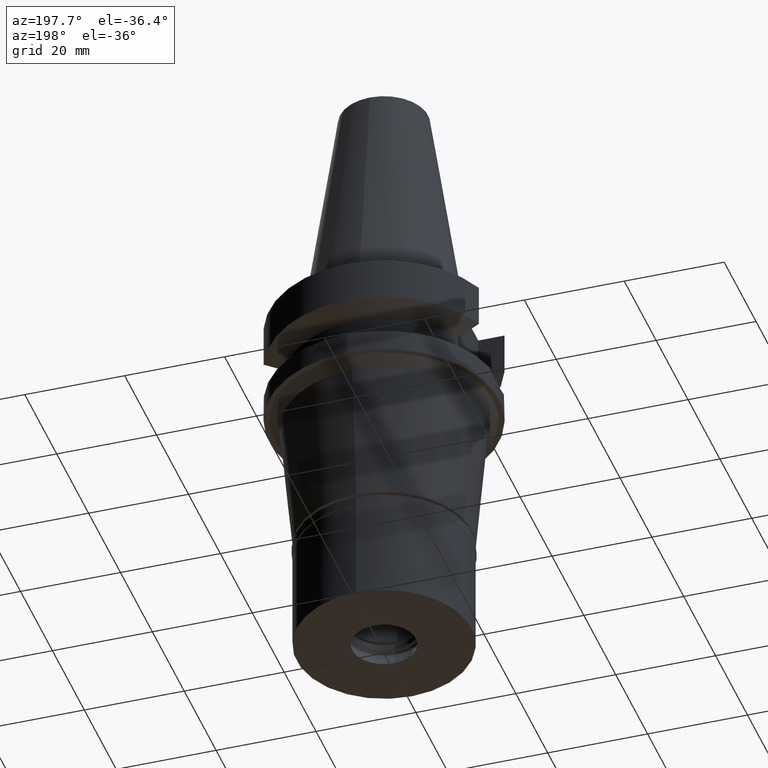
[diagram: clean part render]
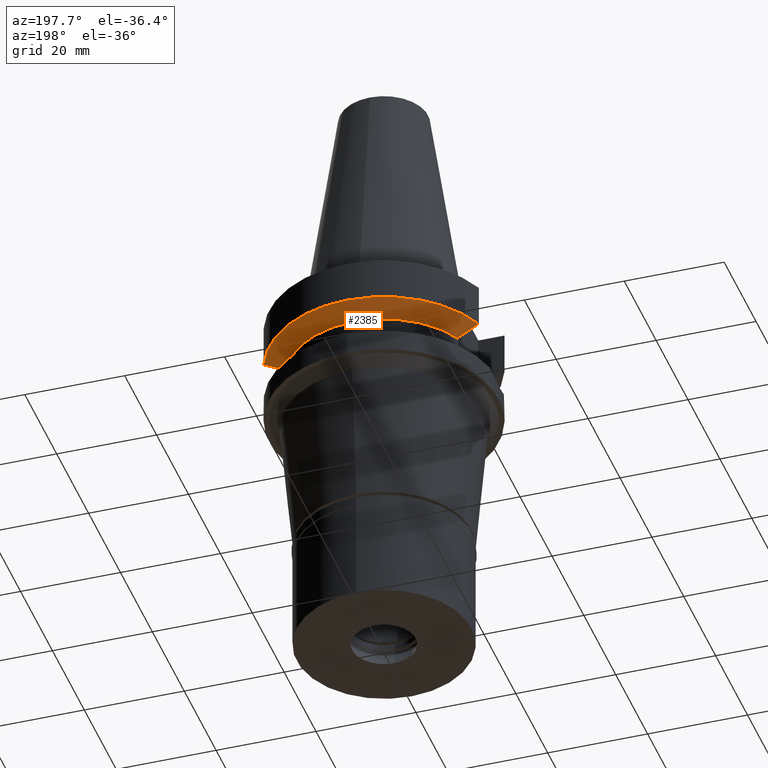
[diagram: same view with one face highlighted and labeled with its STEP entity id]
A machine part, auxiliary view. The second image highlights one B-rep face of the part: STEP entity #2385.
In plain terms, the highlighted conical surface has half-angle 60 deg.
Its self-contained STEP definition (entity closure, byte-faithful):
#20 = EDGE_CURVE ( 'NONE', #223, #2959, #2449, .T. ) ;
#79 = ORIENTED_EDGE ( 'NONE', *, *, #2345, .T. ) ;
#223 = VERTEX_POINT ( 'NONE', #721 ) ;
#237 = AXIS2_PLACEMENT_3D ( 'NONE', #1935, #310, #1249 ) ;
#290 = CARTESIAN_POINT ( 'NONE',  ( -20.64102060711186226, 8.050004185766349352, -10.05624058751051741 ) ) ;
#310 = DIRECTION ( 'NONE',  ( 0.0000000000000000000, 0.0000000000000000000, 1.000000000000000000 ) ) ;
#554 = B_SPLINE_CURVE_WITH_KNOTS ( 'NONE', 3,
 ( #584, #2036, #861, #1589 ),
 .UNSPECIFIED., .F., .F.,
 ( 4, 4 ),
 ( 0.0000000000000000000, 1.000000000000000000 ),
 .UNSPECIFIED. ) ;
#584 = CARTESIAN_POINT ( 'NONE',  ( -18.96736186712000105, 8.050001278060001653, -10.94999977536999936 ) ) ;
#664 = CARTESIAN_POINT ( 'NONE',  ( 20.64098922513857204, 8.049999155450739963, -10.05625859774404063 ) ) ;
#669 = EDGE_CURVE ( 'NONE', #769, #2177, #1971, .T. ) ;
#721 = CARTESIAN_POINT ( 'NONE',  ( 21.54524325238000060, 8.049999577379001181, -9.567211146543000311 ) ) ;
#769 = VERTEX_POINT ( 'NONE', #1190 ) ;
#832 = DIRECTION ( 'NONE',  ( 0.0000000000000000000, 0.0000000000000000000, -1.000000000000000000 ) ) ;
#853 = DIRECTION ( 'NONE',  ( -0.9071218755693948310, 0.4208680349746975469, 0.0000000000000000000 ) ) ;
#854 = ORIENTED_EDGE ( 'NONE', *, *, #20, .F. ) ;
#861 = CARTESIAN_POINT ( 'NONE',  ( -17.72682657658894456, 8.027186145136614215, -11.61172868551800086 ) ) ;
#965 = VERTEX_POINT ( 'NONE', #1318 ) ;
#1080 = CARTESIAN_POINT ( 'NONE',  ( 18.96738966530000070, 8.049994318182998043, -10.95000099923000114 ) ) ;
#1132 = EDGE_CURVE ( 'NONE', #1906, #2959, #2780, .T. ) ;
#1190 = CARTESIAN_POINT ( 'NONE',  ( -17.23531135277999837, 7.996501749842999551, -11.87660739337000138 ) ) ;
#1249 = DIRECTION ( 'NONE',  ( 0.0000000000000000000, 1.000000000000000000, 0.0000000000000000000 ) ) ;
#1255 = CARTESIAN_POINT ( 'NONE',  ( -18.96736186712000105, 8.050001278060001653, -10.94999977536999936 ) ) ;
#1289 = AXIS2_PLACEMENT_3D ( 'NONE', #1549, #832, #853 ) ;
#1308 = CARTESIAN_POINT ( 'NONE',  ( 19.78174442298433533, 8.049991903556987793, -10.51718567366341262 ) ) ;
#1318 = CARTESIAN_POINT ( 'NONE',  ( 18.96738966530000070, 8.049994318182998043, -10.95000099923000114 ) ) ;
#1355 = CARTESIAN_POINT ( 'NONE',  ( 21.54524325238000060, 8.049999577379001181, -9.567211146543000311 ) ) ;
#1402 = EDGE_CURVE ( 'NONE', #2177, #965, #1804, .T. ) ;
#1443 = EDGE_LOOP ( 'NONE', ( #854, #79, #1791, #2105, #1447, #2997 ) ) ;
#1447 = ORIENTED_EDGE ( 'NONE', *, *, #1698, .F. ) ;
#1451 = CARTESIAN_POINT ( 'NONE',  ( -21.54524231189000005, 8.050002094537999753, -9.567194606710000215 ) ) ;
#1464 = CARTESIAN_POINT ( 'NONE',  ( 0.0000000000000000000, 0.0000000000000000000, -10.72190890808999875 ) ) ;
#1549 = CARTESIAN_POINT ( 'NONE',  ( 0.0000000000000000000, 0.0000000000000000000, -11.87660944646999894 ) ) ;
#1589 = CARTESIAN_POINT ( 'NONE',  ( -17.23531135277999837, 7.996501749842999551, -11.87660739337000138 ) ) ;
#1687 = CARTESIAN_POINT ( 'NONE',  ( -19.78176599987389750, 8.050001300084160150, -10.51717224073629353 ) ) ;
#1698 = EDGE_CURVE ( 'NONE', #1906, #769, #554, .T. ) ;
#1791 = ORIENTED_EDGE ( 'NONE', *, *, #1402, .F. ) ;
#1804 = B_SPLINE_CURVE_WITH_KNOTS ( 'NONE', 3,
 ( #2312, #2954, #2502, #1080 ),
 .UNSPECIFIED., .F., .F.,
 ( 4, 4 ),
 ( 0.0000000000000000000, 1.000000000000000000 ),
 .UNSPECIFIED. ) ;
#1861 = CARTESIAN_POINT ( 'NONE',  ( -21.54524231189000005, 8.050002094537999753, -9.567194606710000215 ) ) ;
#1906 = VERTEX_POINT ( 'NONE', #2261 ) ;
#1935 = CARTESIAN_POINT ( 'NONE',  ( 0.0000000000000000000, 0.0000000000000000000, -9.567208369710998639 ) ) ;
#1946 = DIRECTION ( 'NONE',  ( 0.0000000000000000000, 0.0000000000000000000, 1.000000000000000000 ) ) ;
#1971 = CIRCLE ( 'NONE', #1289, 19.00000000000000000 ) ;
#2036 = CARTESIAN_POINT ( 'NONE',  ( -18.30417674803561567, 8.050000009835159176, -11.30245975391281377 ) ) ;
#2105 = ORIENTED_EDGE ( 'NONE', *, *, #669, .F. ) ;
#2177 = VERTEX_POINT ( 'NONE', #2911 ) ;
#2261 = CARTESIAN_POINT ( 'NONE',  ( -18.96736186712000105, 8.050001278060001653, -10.94999977536999936 ) ) ;
#2312 = CARTESIAN_POINT ( 'NONE',  ( 17.23531622902000038, 7.996491146276001771, -11.87660607782000000 ) ) ;
#2345 = EDGE_CURVE ( 'NONE', #223, #965, #2632, .T. ) ;
#2385 = ADVANCED_FACE ( 'NONE', ( #2646 ), #2474, .T. ) ;
#2422 = AXIS2_PLACEMENT_3D ( 'NONE', #1464, #1946, #2442 ) ;
#2442 = DIRECTION ( 'NONE',  ( 0.0000000000000000000, 1.000000000000000000, 0.0000000000000000000 ) ) ;
#2449 = CIRCLE ( 'NONE', #237, 23.00000000000000000 ) ;
#2460 = CARTESIAN_POINT ( 'NONE',  ( 18.96738966530000070, 8.049994318182998043, -10.95000099923000114 ) ) ;
#2474 = CONICAL_SURFACE ( 'NONE', #2422, 21.00000000000000000, 1.047197551196400456 ) ;
#2502 = CARTESIAN_POINT ( 'NONE',  ( 18.30334767960350817, 8.049999956193227391, -11.30291651801537789 ) ) ;
#2632 = B_SPLINE_CURVE_WITH_KNOTS ( 'NONE', 3,
 ( #1355, #664, #1308, #2460 ),
 .UNSPECIFIED., .F., .F.,
 ( 4, 4 ),
 ( 0.0000000000000000000, 1.000000000000000000 ),
 .UNSPECIFIED. ) ;
#2646 = FACE_OUTER_BOUND ( 'NONE', #1443, .T. ) ;
#2780 = B_SPLINE_CURVE_WITH_KNOTS ( 'NONE', 3,
 ( #1255, #1687, #290, #1451 ),
 .UNSPECIFIED., .F., .F.,
 ( 4, 4 ),
 ( 0.0000000000000000000, 1.000000000000000000 ),
 .UNSPECIFIED. ) ;
#2911 = CARTESIAN_POINT ( 'NONE',  ( 17.23531622902000038, 7.996491146276001771, -11.87660607782000000 ) ) ;
#2954 = CARTESIAN_POINT ( 'NONE',  ( 17.72598986751017236, 8.027133616107310132, -11.61218197945228070 ) ) ;
#2959 = VERTEX_POINT ( 'NONE', #1861 ) ;
#2997 = ORIENTED_EDGE ( 'NONE', *, *, #1132, .T. ) ;